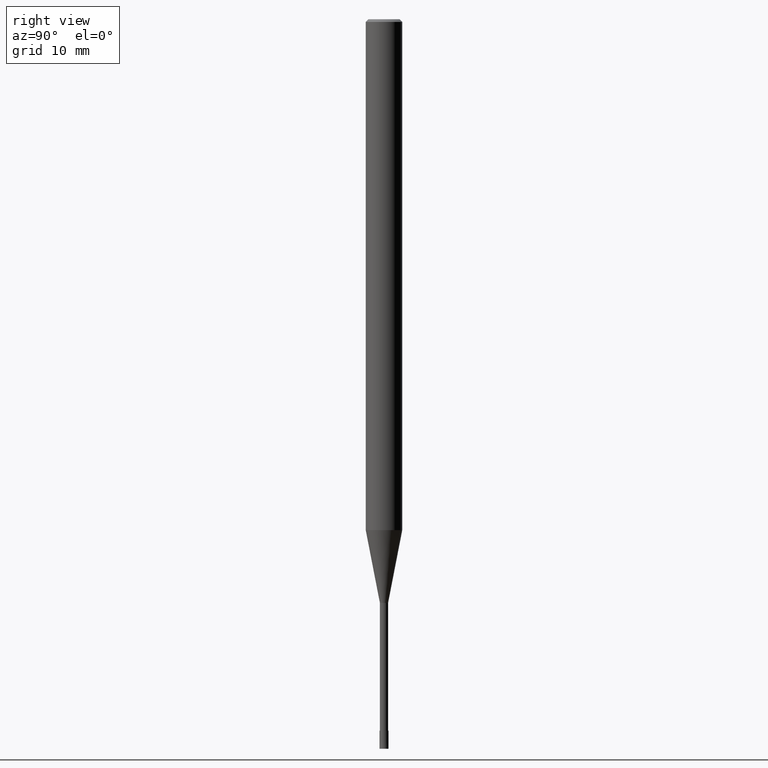
[diagram: clean part render]
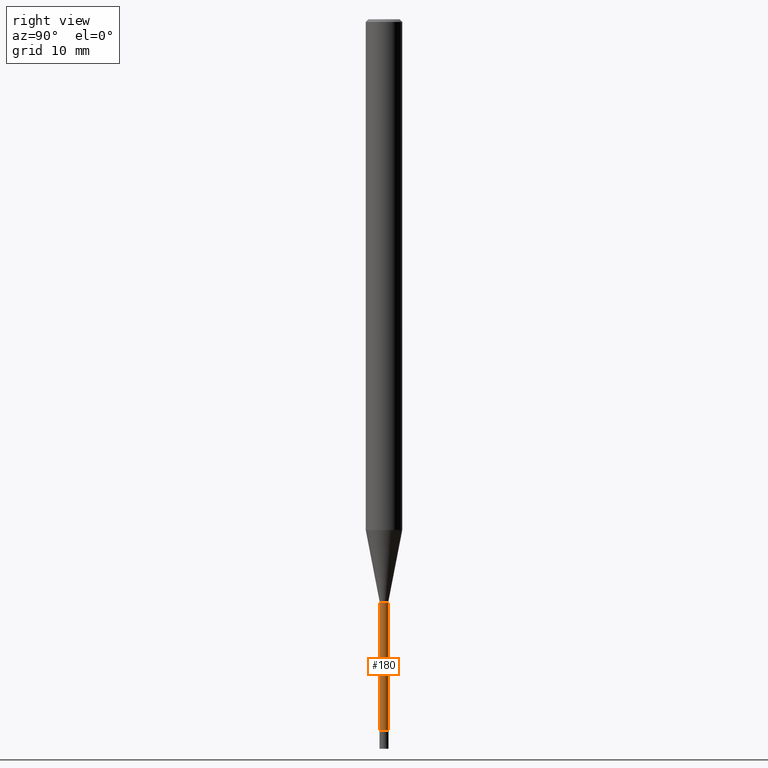
[diagram: same view with one face highlighted and labeled with its STEP entity id]
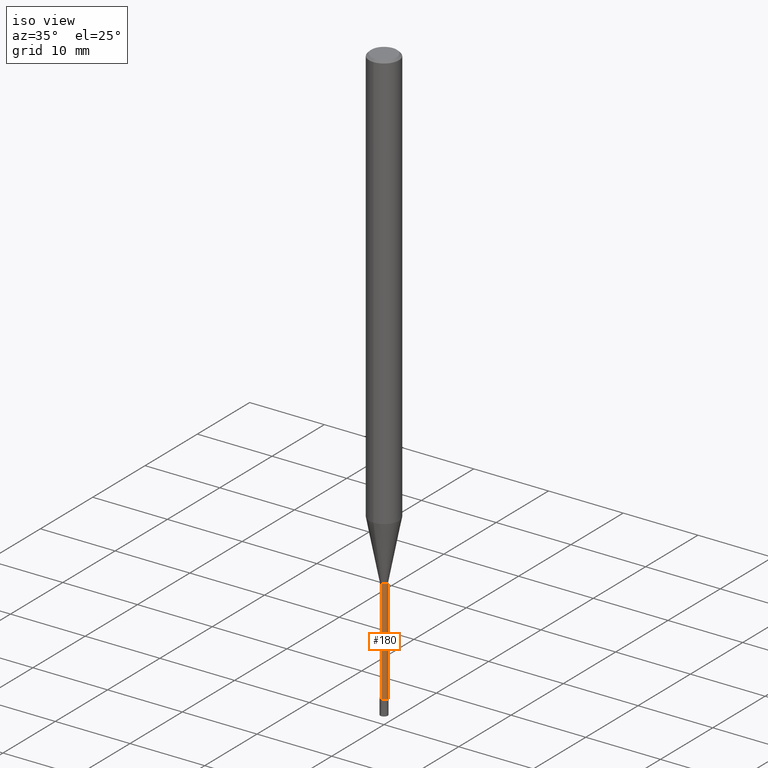
[diagram: same view with one face highlighted and labeled with its STEP entity id]
A machine part, right view. The second image highlights one B-rep face of the part: STEP entity #180.
A second angle (iso view) of the same face is appended — the face is thin or edge-on in the first view.
In plain terms, the highlighted cylindrical surface (edge-blend (fillet) strip) has radius 0.45 mm, axis along (-0, -0, 1).
Its self-contained STEP definition (entity closure, byte-faithful):
#118=VERTEX_POINT('',#259);
#122=EDGE_CURVE('',#118,#134,#263,.T.);
#124=VERTEX_POINT('',#265);
#134=VERTEX_POINT('',#275);
#140=EDGE_CURVE('',#178,#134,#281,.T.);
#144=EDGE_CURVE('',#178,#124,#285,.T.);
#178=VERTEX_POINT('',#326);
#180=ADVANCED_FACE('',(#328),#329,.T.);
#202=EDGE_CURVE('',#124,#118,#355,.T.);
#259=CARTESIAN_POINT('',(5.51011628902379E-017,-0.44995,-78.0));
#263=LINE('',#420,#421);
#265=CARTESIAN_POINT('',(0.0,0.44995,-78.0));
#275=CARTESIAN_POINT('',(5.51011628902379E-017,-0.44995,-64.0));
#281=CIRCLE('',#443,0.44995);
#285=LINE('',#449,#450);
#326=CARTESIAN_POINT('',(0.0,0.44995,-64.0));
#328=FACE_OUTER_BOUND('',#500,.T.);
#329=CYLINDRICAL_SURFACE('',#501,0.44995);
#355=CIRCLE('',#531,0.44995);
#420=CARTESIAN_POINT('',(5.51011628902379E-017,-0.44995,-71.0));
#421=VECTOR('',#585,1.0);
#443=AXIS2_PLACEMENT_3D('',#595,#596,#597);
#449=CARTESIAN_POINT('',(-5.51011628902379E-017,0.44995,-71.0));
#450=VECTOR('',#601,1.0);
#500=EDGE_LOOP('',(#664,#665,#666,#667));
#501=AXIS2_PLACEMENT_3D('',#668,#669,#670);
#531=AXIS2_PLACEMENT_3D('',#707,#708,#709);
#585=DIRECTION('',(-0.0,-0.0,1.0));
#595=CARTESIAN_POINT('',(0.0,0.0,-64.0));
#596=DIRECTION('',(0.0,0.0,-1.0));
#597=DIRECTION('',(0.0,1.0,0.0));
#601=DIRECTION('',(0.0,0.0,-1.0));
#664=ORIENTED_EDGE('',*,*,#144,.F.);
#665=ORIENTED_EDGE('',*,*,#140,.T.);
#666=ORIENTED_EDGE('',*,*,#122,.F.);
#667=ORIENTED_EDGE('',*,*,#202,.F.);
#668=CARTESIAN_POINT('',(0.0,0.0,-71.0));
#669=DIRECTION('',(-0.0,-0.0,1.0));
#670=DIRECTION('',(0.0,1.0,0.0));
#707=CARTESIAN_POINT('',(0.0,0.0,-78.0));
#708=DIRECTION('',(0.0,0.0,-1.0));
#709=DIRECTION('',(0.0,1.0,0.0));